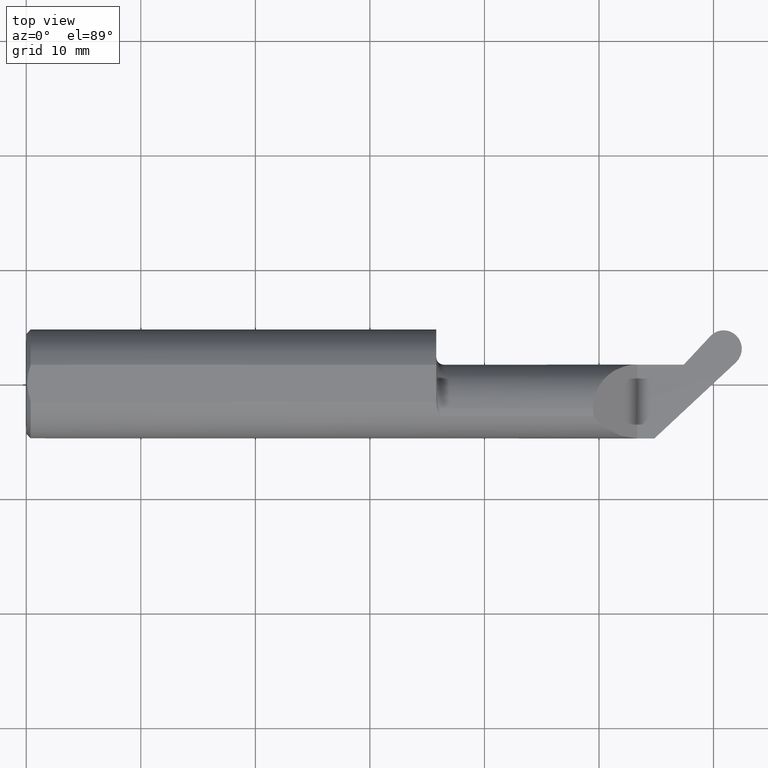
[diagram: clean part render]
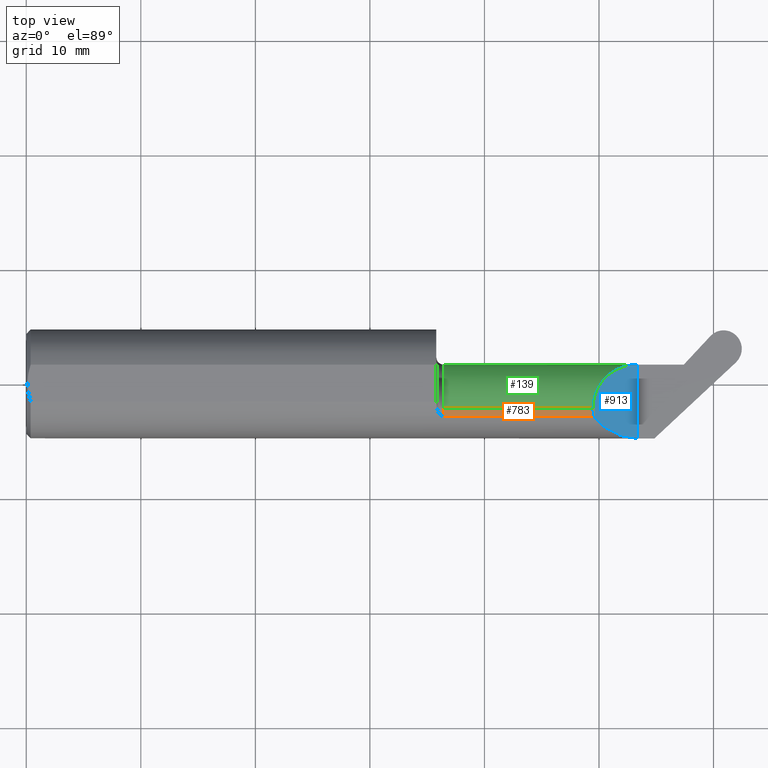
[diagram: same view with three faces highlighted in distinct colors, each labeled with its STEP entity id]
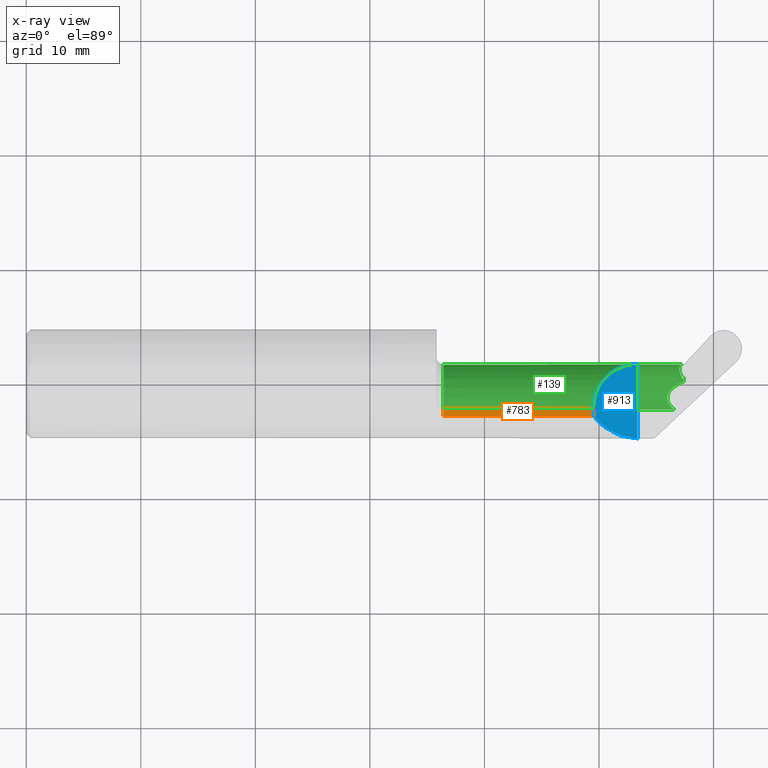
[diagram: x-ray of the same camera — body ghosted, the three highlighted faces saturated]
A machine part, top view with three faces highlighted in distinct colors.
The next image is the same camera in x-ray (body ghosted, the three faces saturated) — at least one of them is partly hidden behind the body in this view.
Their STEP definitions:

[orange] entity #783 — the highlighted cylindrical surface (partial cylindrical patch) has radius 3.8608 mm, axis along (-1, -0, -0).
#26 = CARTESIAN_POINT ( 'NONE',  ( 1.948844637866756990, -0.1038401262696871108, 0.1511553621332444586 ) ) ;
#68 = DIRECTION ( 'NONE',  ( 0.000000000000000000, 0.000000000000000000, 1.000000000000000000 ) ) ;
#74 = AXIS2_PLACEMENT_3D ( 'NONE', #771, #499, #80 ) ;
#80 = DIRECTION ( 'NONE',  ( 0.000000000000000000, 0.000000000000000000, 1.000000000000000000 ) ) ;
#106 = CARTESIAN_POINT ( 'NONE',  ( 1.950526878236143125, -0.1129504686584646977, 0.1494731217638582688 ) ) ;
#109 = EDGE_CURVE ( 'NONE', #732, #842, #422, .T. ) ;
#122 = EDGE_CURVE ( 'NONE', #732, #830, #200, .T. ) ;
#149 = CARTESIAN_POINT ( 'NONE',  ( 1.409400000000000652, -0.08534999999999998144, 0.1520000000000003570 ) ) ;
#164 = CYLINDRICAL_SURFACE ( 'NONE', #74, 0.1520000000000003570 ) ;
#178 = VERTEX_POINT ( 'NONE', #644 ) ;
#180 = CARTESIAN_POINT ( 'NONE',  ( 1.434400000000000341, -0.1129504686584644896, 0.1494731217638587406 ) ) ;
#200 = LINE ( 'NONE', #931, #735 ) ;
#211 = CARTESIAN_POINT ( 'NONE',  ( 1.950526878236143125, -0.1129504686584646977, 0.1494731217638582688 ) ) ;
#232 = VECTOR ( 'NONE', #740, 39.37007874015748143 ) ;
#268 =( BOUNDED_CURVE ( )  B_SPLINE_CURVE ( 3, ( #106, #26, #470, #398 ),
 .UNSPECIFIED., .F., .T. ) 
 B_SPLINE_CURVE_WITH_KNOTS ( ( 4, 4 ),
 ( 6.100590318874944629, 6.283185307179586232 ),
 .UNSPECIFIED. ) 
 CURVE ( )  GEOMETRIC_REPRESENTATION_ITEM ( )  RATIONAL_B_SPLINE_CURVE ( ( 1.000000000000000000, 0.9972235185427067439, 0.9972235185427067439, 1.000000000000000000 ) ) 
 REPRESENTATION_ITEM ( '' )  );
#269 = FACE_OUTER_BOUND ( 'NONE', #310, .T. ) ;
#301 = EDGE_CURVE ( 'NONE', #178, #842, #659, .T. ) ;
#310 = EDGE_LOOP ( 'NONE', ( #835, #912, #442, #767 ) ) ;
#356 = CARTESIAN_POINT ( 'NONE',  ( 1.434400000000000341, -0.08534999999999998144, 0.1520000000000007179 ) ) ;
#398 = CARTESIAN_POINT ( 'NONE',  ( 1.948000000000001286, -0.08534999999999998144, 0.1520000000000003570 ) ) ;
#400 = CARTESIAN_POINT ( 'NONE',  ( 1.434400000000000341, -0.08534999999999998144, 0.000000000000000000 ) ) ;
#422 = CIRCLE ( 'NONE', #578, 0.1520000000000007179 ) ;
#426 = DIRECTION ( 'NONE',  ( 1.000000000000000000, 0.000000000000000000, 0.000000000000000000 ) ) ;
#442 = ORIENTED_EDGE ( 'NONE', *, *, #109, .F. ) ;
#470 = CARTESIAN_POINT ( 'NONE',  ( 1.948000000000001286, -0.09461435486696996577, 0.1520000000000003570 ) ) ;
#497 = EDGE_CURVE ( 'NONE', #830, #178, #268, .T. ) ;
#499 = DIRECTION ( 'NONE',  ( -1.000000000000000000, -0.000000000000000000, -0.000000000000000000 ) ) ;
#578 = AXIS2_PLACEMENT_3D ( 'NONE', #400, #856, #68 ) ;
#644 = CARTESIAN_POINT ( 'NONE',  ( 1.948000000000001286, -0.08534999999999998144, 0.1520000000000003570 ) ) ;
#659 = LINE ( 'NONE', #149, #232 ) ;
#732 = VERTEX_POINT ( 'NONE', #180 ) ;
#735 = VECTOR ( 'NONE', #426, 39.37007874015748143 ) ;
#740 = DIRECTION ( 'NONE',  ( -1.000000000000000000, -0.000000000000000000, -0.000000000000000000 ) ) ;
#767 = ORIENTED_EDGE ( 'NONE', *, *, #122, .T. ) ;
#771 = CARTESIAN_POINT ( 'NONE',  ( 1.409400000000000652, -0.08534999999999998144, 0.000000000000000000 ) ) ;
#783 = ADVANCED_FACE ( 'NONE', ( #269 ), #164, .T. ) ;
#830 = VERTEX_POINT ( 'NONE', #211 ) ;
#835 = ORIENTED_EDGE ( 'NONE', *, *, #497, .T. ) ;
#842 = VERTEX_POINT ( 'NONE', #356 ) ;
#856 = DIRECTION ( 'NONE',  ( -1.000000000000000000, -0.000000000000000000, -0.000000000000000000 ) ) ;
#912 = ORIENTED_EDGE ( 'NONE', *, *, #301, .T. ) ;
#931 = CARTESIAN_POINT ( 'NONE',  ( 1.847270599853573003, -0.1129504686584644618, 0.1494731217638583798 ) ) ;

[blue] entity #913 — the highlighted planar face has unit normal (-0.7071, 0, -0.7071).
#18 = CARTESIAN_POINT ( 'NONE',  ( 2.100000000000000089, -0.1873500000000000165, -4.745349621061712245E-17 ) ) ;
#26 = CARTESIAN_POINT ( 'NONE',  ( 1.948844637866756990, -0.1038401262696871108, 0.1511553621332444586 ) ) ;
#40 = AXIS2_PLACEMENT_3D ( 'NONE', #18, #90, #162 ) ;
#90 = DIRECTION ( 'NONE',  ( -0.7071067811865510144, 0.000000000000000000, -0.7071067811865441310 ) ) ;
#106 = CARTESIAN_POINT ( 'NONE',  ( 1.950526878236143125, -0.1129504686584646977, 0.1494731217638582688 ) ) ;
#150 = CARTESIAN_POINT ( 'NONE',  ( 2.100000000000000089, 0.06665000000000036173, -4.745349621061712245E-17 ) ) ;
#153 = CARTESIAN_POINT ( 'NONE',  ( 2.100000000000000089, 0.06665000000000036173, -4.745349621061712245E-17 ) ) ;
#162 = DIRECTION ( 'NONE',  ( -0.7071067811865440200, 0.000000000000000000, 0.7071067811865509034 ) ) ;
#178 = VERTEX_POINT ( 'NONE', #644 ) ;
#199 = VECTOR ( 'NONE', #863, 39.37007874015748143 ) ;
#201 = CARTESIAN_POINT ( 'NONE',  ( 1.948000000000001286, -0.08534999999999998144, 0.1520000000000003570 ) ) ;
#211 = CARTESIAN_POINT ( 'NONE',  ( 1.950526878236143125, -0.1129504686584646977, 0.1494731217638582688 ) ) ;
#253 = CARTESIAN_POINT ( 'NONE',  ( 1.950526878236143125, -0.1129504686584646977, 0.1494731217638582688 ) ) ;
#256 = ORIENTED_EDGE ( 'NONE', *, *, #497, .F. ) ;
#268 =( BOUNDED_CURVE ( )  B_SPLINE_CURVE ( 3, ( #106, #26, #470, #398 ),
 .UNSPECIFIED., .F., .T. ) 
 B_SPLINE_CURVE_WITH_KNOTS ( ( 4, 4 ),
 ( 6.100590318874944629, 6.283185307179586232 ),
 .UNSPECIFIED. ) 
 CURVE ( )  GEOMETRIC_REPRESENTATION_ITEM ( )  RATIONAL_B_SPLINE_CURVE ( ( 1.000000000000000000, 0.9972235185427067439, 0.9972235185427067439, 1.000000000000000000 ) ) 
 REPRESENTATION_ITEM ( '' )  );
#359 = VERTEX_POINT ( 'NONE', #725 ) ;
#398 = CARTESIAN_POINT ( 'NONE',  ( 1.948000000000001286, -0.08534999999999998144, 0.1520000000000003570 ) ) ;
#409 = ORIENTED_EDGE ( 'NONE', *, *, #763, .F. ) ;
#428 = CARTESIAN_POINT ( 'NONE',  ( 1.948000000000001286, 0.003689538519289776997, 0.1520000000000003570 ) ) ;
#437 = FACE_OUTER_BOUND ( 'NONE', #548, .T. ) ;
#457 = ORIENTED_EDGE ( 'NONE', *, *, #596, .T. ) ;
#470 = CARTESIAN_POINT ( 'NONE',  ( 1.948000000000001286, -0.09461435486696996577, 0.1520000000000003570 ) ) ;
#485 = CARTESIAN_POINT ( 'NONE',  ( 2.100000000000000089, 0.2000000000000000111, -4.745349621061712245E-17 ) ) ;
#497 = EDGE_CURVE ( 'NONE', #830, #178, #268, .T. ) ;
#523 = PLANE ( 'NONE',  #40 ) ;
#546 = CARTESIAN_POINT ( 'NONE',  ( 2.040165707162854059, -0.1873499999999999888, 0.05983429283714654379 ) ) ;
#548 = EDGE_LOOP ( 'NONE', ( #256, #409, #457, #748 ) ) ;
#562 =( BOUNDED_CURVE ( )  B_SPLINE_CURVE ( 3, ( #201, #428, #782, #150 ),
 .UNSPECIFIED., .F., .T. ) 
 B_SPLINE_CURVE_WITH_KNOTS ( ( 4, 4 ),
 ( 0.000000000000000000, 1.570796326794896780 ),
 .UNSPECIFIED. ) 
 CURVE ( )  GEOMETRIC_REPRESENTATION_ITEM ( )  RATIONAL_B_SPLINE_CURVE ( ( 1.000000000000000000, 0.8047378541243649375, 0.8047378541243649375, 1.000000000000000000 ) ) 
 REPRESENTATION_ITEM ( '' )  );
#596 = EDGE_CURVE ( 'NONE', #359, #936, #916, .T. ) ;
#644 = CARTESIAN_POINT ( 'NONE',  ( 1.948000000000001286, -0.08534999999999998144, 0.1520000000000003570 ) ) ;
#687 = CARTESIAN_POINT ( 'NONE',  ( 1.986600064346650152, -0.1606879575236964119, 0.1133999356533509778 ) ) ;
#725 = CARTESIAN_POINT ( 'NONE',  ( 2.100000000000000089, -0.1873499999999999888, -4.745349621061712245E-17 ) ) ;
#748 = ORIENTED_EDGE ( 'NONE', *, *, #869, .F. ) ;
#763 = EDGE_CURVE ( 'NONE', #359, #830, #825, .T. ) ;
#782 = CARTESIAN_POINT ( 'NONE',  ( 2.010960461480711281, 0.06665000000000038949, 0.08903953851928975149 ) ) ;
#825 =( BOUNDED_CURVE ( )  B_SPLINE_CURVE ( 3, ( #915, #546, #687, #253 ),
 .UNSPECIFIED., .F., .F. ) 
 B_SPLINE_CURVE_WITH_KNOTS ( ( 4, 4 ),
 ( 4.712388980384689674, 5.636073291855367984 ),
 .UNSPECIFIED. ) 
 CURVE ( )  GEOMETRIC_REPRESENTATION_ITEM ( )  RATIONAL_B_SPLINE_CURVE ( ( 1.000000000000000000, 0.9301554373620515292, 0.9301554373620515292, 1.000000000000000000 ) ) 
 REPRESENTATION_ITEM ( '' )  );
#830 = VERTEX_POINT ( 'NONE', #211 ) ;
#863 = DIRECTION ( 'NONE',  ( -0.000000000000000000, 1.000000000000000000, -0.000000000000000000 ) ) ;
#869 = EDGE_CURVE ( 'NONE', #178, #936, #562, .T. ) ;
#913 = ADVANCED_FACE ( 'NONE', ( #437 ), #523, .F. ) ;
#915 = CARTESIAN_POINT ( 'NONE',  ( 2.100000000000000089, -0.1873499999999999888, -4.745349621061712245E-17 ) ) ;
#916 = LINE ( 'NONE', #485, #199 ) ;
#936 = VERTEX_POINT ( 'NONE', #153 ) ;

[green] entity #139 — the highlighted cylindrical surface (partial cylindrical patch) has radius 3.8608 mm, axis along (-1, -0, -0).
#1 = CARTESIAN_POINT ( 'NONE',  ( 2.226123638528743509, -0.08534999999999996756, -0.1520000000000003570 ) ) ;
#37 = EDGE_CURVE ( 'NONE', #842, #61, #468, .T. ) ;
#56 = VERTEX_POINT ( 'NONE', #686 ) ;
#61 = VERTEX_POINT ( 'NONE', #263 ) ;
#85 = ORIENTED_EDGE ( 'NONE', *, *, #274, .T. ) ;
#93 = CARTESIAN_POINT ( 'NONE',  ( 2.244516869901568068, 0.05645629897935580677, -0.05498308975101909302 ) ) ;
#103 = ORIENTED_EDGE ( 'NONE', *, *, #37, .F. ) ;
#112 = ORIENTED_EDGE ( 'NONE', *, *, #357, .T. ) ;
#115 = AXIS2_PLACEMENT_3D ( 'NONE', #195, #126, #570 ) ;
#126 = DIRECTION ( 'NONE',  ( -1.000000000000000000, -0.000000000000000000, -0.000000000000000000 ) ) ;
#139 = ADVANCED_FACE ( 'NONE', ( #414 ), #860, .T. ) ;
#149 = CARTESIAN_POINT ( 'NONE',  ( 1.409400000000000652, -0.08534999999999998144, 0.1520000000000003570 ) ) ;
#150 = CARTESIAN_POINT ( 'NONE',  ( 2.100000000000000089, 0.06665000000000036173, -4.745349621061712245E-17 ) ) ;
#153 = CARTESIAN_POINT ( 'NONE',  ( 2.100000000000000089, 0.06665000000000036173, -4.745349621061712245E-17 ) ) ;
#161 = CARTESIAN_POINT ( 'NONE',  ( 2.246626689335998517, 0.06138847945356164237, -0.03999301210648770200 ) ) ;
#165 = CARTESIAN_POINT ( 'NONE',  ( 2.251992488848001184, 0.02598289541876443870, -0.1039642947416264673 ) ) ;
#173 = CARTESIAN_POINT ( 'NONE',  ( 2.260141199707145887, 0.01092765083770513672, -0.1176206357284848569 ) ) ;
#177 = CARTESIAN_POINT ( 'NONE',  ( 1.409400000000000652, -0.08534999999999996756, -0.1520000000000003570 ) ) ;
#178 = VERTEX_POINT ( 'NONE', #644 ) ;
#188 = VERTEX_POINT ( 'NONE', #786 ) ;
#189 = EDGE_CURVE ( 'NONE', #56, #486, #891, .T. ) ;
#195 = CARTESIAN_POINT ( 'NONE',  ( 1.409400000000000652, -0.08534999999999998144, 0.000000000000000000 ) ) ;
#201 = CARTESIAN_POINT ( 'NONE',  ( 1.948000000000001286, -0.08534999999999998144, 0.1520000000000003570 ) ) ;
#202 = CIRCLE ( 'NONE', #640, 0.1519999999999999685 ) ;
#208 = CARTESIAN_POINT ( 'NONE',  ( 2.260141199707145887, 0.02599910668800015090, -0.1034667890668121010 ) ) ;
#210 = CARTESIAN_POINT ( 'NONE',  ( 2.197822866112266293, -0.01650722409923191525, -0.1400772845435100111 ) ) ;
#232 = VECTOR ( 'NONE', #740, 39.37007874015748143 ) ;
#257 = DIRECTION ( 'NONE',  ( -1.000000000000000000, -0.000000000000000000, -0.000000000000000000 ) ) ;
#263 = CARTESIAN_POINT ( 'NONE',  ( 1.434400000000000341, -0.08534999999999996756, -0.1520000000000007179 ) ) ;
#274 = EDGE_CURVE ( 'NONE', #628, #486, #202, .T. ) ;
#290 = DIRECTION ( 'NONE',  ( 1.000000000000000000, 0.000000000000000000, 0.000000000000000000 ) ) ;
#293 = VERTEX_POINT ( 'NONE', #800 ) ;
#297 = CARTESIAN_POINT ( 'NONE',  ( 2.244116630270731161, 0.05227606614710446353, -0.06473972895883868539 ) ) ;
#301 = EDGE_CURVE ( 'NONE', #178, #842, #659, .T. ) ;
#303 = CARTESIAN_POINT ( 'NONE',  ( 2.260141199707143667, 0.06665000000000145808, 7.717470582101543050E-15 ) ) ;
#341 = EDGE_CURVE ( 'NONE', #293, #188, #665, .T. ) ;
#356 = CARTESIAN_POINT ( 'NONE',  ( 1.434400000000000341, -0.08534999999999998144, 0.1520000000000007179 ) ) ;
#357 = EDGE_CURVE ( 'NONE', #936, #293, #376, .T. ) ;
#365 = DIRECTION ( 'NONE',  ( 0.000000000000000000, 0.000000000000000000, 1.000000000000000000 ) ) ;
#369 = CARTESIAN_POINT ( 'NONE',  ( 2.251845436493219221, 0.06572839334873586958, -0.01965257165044167337 ) ) ;
#372 = CARTESIAN_POINT ( 'NONE',  ( 2.244226989899055447, 0.04989058623087406358, -0.06958800794744127161 ) ) ;
#376 = LINE ( 'NONE', #672, #515 ) ;
#382 = DIRECTION ( 'NONE',  ( 0.000000000000000000, 0.000000000000000000, 1.000000000000000000 ) ) ;
#385 = ORIENTED_EDGE ( 'NONE', *, *, #189, .F. ) ;
#414 = FACE_OUTER_BOUND ( 'NONE', #569, .T. ) ;
#419 = CARTESIAN_POINT ( 'NONE',  ( 2.260141199707145887, -0.08534999999999998144, 0.000000000000000000 ) ) ;
#428 = CARTESIAN_POINT ( 'NONE',  ( 1.948000000000001286, 0.003689538519289776997, 0.1520000000000003570 ) ) ;
#431 = CARTESIAN_POINT ( 'NONE',  ( 2.247738491380130821, 0.06268864236261699474, -0.03486095946414904251 ) ) ;
#434 = DIRECTION ( 'NONE',  ( -1.000000000000000000, -0.000000000000000000, -0.000000000000000000 ) ) ;
#455 = EDGE_CURVE ( 'NONE', #188, #628, #724, .T. ) ;
#459 = CARTESIAN_POINT ( 'NONE',  ( 2.258878214475159130, 0.02365255206876458807, -0.1059921091525828085 ) ) ;
#468 = CIRCLE ( 'NONE', #545, 0.1520000000000007179 ) ;
#486 = VERTEX_POINT ( 'NONE', #173 ) ;
#515 = VECTOR ( 'NONE', #290, 39.37007874015748143 ) ;
#521 = EDGE_CURVE ( 'NONE', #56, #61, #766, .T. ) ;
#522 = CARTESIAN_POINT ( 'NONE',  ( 2.245070961208889937, 0.04467455014931961260, -0.07890578795393085598 ) ) ;
#545 = AXIS2_PLACEMENT_3D ( 'NONE', #894, #257, #382 ) ;
#549 = CARTESIAN_POINT ( 'NONE',  ( 2.186025623462557466, -0.04989617878413193930, -0.1520000000000003848 ) ) ;
#562 =( BOUNDED_CURVE ( )  B_SPLINE_CURVE ( 3, ( #201, #428, #782, #150 ),
 .UNSPECIFIED., .F., .T. ) 
 B_SPLINE_CURVE_WITH_KNOTS ( ( 4, 4 ),
 ( 0.000000000000000000, 1.570796326794896780 ),
 .UNSPECIFIED. ) 
 CURVE ( )  GEOMETRIC_REPRESENTATION_ITEM ( )  RATIONAL_B_SPLINE_CURVE ( ( 1.000000000000000000, 0.8047378541243649375, 0.8047378541243649375, 1.000000000000000000 ) ) 
 REPRESENTATION_ITEM ( '' )  );
#569 = EDGE_LOOP ( 'NONE', ( #385, #602, #103, #896, #846, #112, #815, #793, #85 ) ) ;
#570 = DIRECTION ( 'NONE',  ( 0.000000000000000000, 0.000000000000000000, 1.000000000000000000 ) ) ;
#584 = CARTESIAN_POINT ( 'NONE',  ( 2.256028074792660654, 0.01870869955986392136, -0.1107961508623369201 ) ) ;
#598 = DIRECTION ( 'NONE',  ( -1.000000000000000000, -0.000000000000000000, -0.000000000000000000 ) ) ;
#602 = ORIENTED_EDGE ( 'NONE', *, *, #521, .T. ) ;
#608 = CARTESIAN_POINT ( 'NONE',  ( 2.260141199707145887, 0.02599910668800015090, -0.1034667890668121010 ) ) ;
#628 = VERTEX_POINT ( 'NONE', #208 ) ;
#629 = CARTESIAN_POINT ( 'NONE',  ( 2.260141199707145887, 0.01092765083770513672, -0.1176206357284848569 ) ) ;
#640 = AXIS2_PLACEMENT_3D ( 'NONE', #419, #434, #365 ) ;
#644 = CARTESIAN_POINT ( 'NONE',  ( 1.948000000000001286, -0.08534999999999998144, 0.1520000000000003570 ) ) ;
#659 = LINE ( 'NONE', #149, #232 ) ;
#665 = B_SPLINE_CURVE_WITH_KNOTS ( 'NONE', 3,
 ( #303, #884, #369, #431, #161, #814, #93, #297, #372, #522, #819, #804, #165, #584 ),
 .UNSPECIFIED., .F., .F.,
 ( 4, 2, 2, 2, 2, 2, 4 ),
 ( 1.315271115337179334E-16, 0.0008101701905472222373, 0.001215255285820767816, 0.001620340381094313069, 0.002025425476367858323, 0.002430510571641402925, 0.003240680762188497335 ),
 .UNSPECIFIED. ) ;
#672 = CARTESIAN_POINT ( 'NONE',  ( 1.409400000000000652, 0.06665000000000036173, -4.745349621061712245E-17 ) ) ;
#684 = CARTESIAN_POINT ( 'NONE',  ( 2.257506643990768946, 0.02122147899316294967, -0.1084361721259405192 ) ) ;
#686 = CARTESIAN_POINT ( 'NONE',  ( 2.226123638528743509, -0.08534999999999996756, -0.1520000000000003570 ) ) ;
#724 =( BOUNDED_CURVE ( )  B_SPLINE_CURVE ( 3, ( #761, #684, #459, #608 ),
 .UNSPECIFIED., .F., .T. ) 
 B_SPLINE_CURVE_WITH_KNOTS ( ( 4, 4 ),
 ( 2.699207237110308188, 2.767232025981918753 ),
 .UNSPECIFIED. ) 
 CURVE ( )  GEOMETRIC_REPRESENTATION_ITEM ( )  RATIONAL_B_SPLINE_CURVE ( ( 1.000000000000000000, 0.9996144228480827731, 0.9996144228480827731, 1.000000000000000000 ) ) 
 REPRESENTATION_ITEM ( '' )  );
#740 = DIRECTION ( 'NONE',  ( -1.000000000000000000, -0.000000000000000000, -0.000000000000000000 ) ) ;
#761 = CARTESIAN_POINT ( 'NONE',  ( 2.256028074792660654, 0.01870869955986392136, -0.1107961508623369201 ) ) ;
#766 = LINE ( 'NONE', #177, #776 ) ;
#776 = VECTOR ( 'NONE', #598, 39.37007874015748143 ) ;
#782 = CARTESIAN_POINT ( 'NONE',  ( 2.010960461480711281, 0.06665000000000038949, 0.08903953851928975149 ) ) ;
#786 = CARTESIAN_POINT ( 'NONE',  ( 2.256028074792660654, 0.01870869955986392136, -0.1107961508623369201 ) ) ;
#793 = ORIENTED_EDGE ( 'NONE', *, *, #455, .T. ) ;
#800 = CARTESIAN_POINT ( 'NONE',  ( 2.260141199707143667, 0.06665000000000145808, 7.717470582101543050E-15 ) ) ;
#804 = CARTESIAN_POINT ( 'NONE',  ( 2.248816413346272913, 0.03282998080076793973, -0.09615879041668068394 ) ) ;
#814 = CARTESIAN_POINT ( 'NONE',  ( 2.245022470103787970, 0.05827565579094916987, -0.05003292284399134260 ) ) ;
#815 = ORIENTED_EDGE ( 'NONE', *, *, #341, .T. ) ;
#819 = CARTESIAN_POINT ( 'NONE',  ( 2.245796036934503359, 0.04185901539785760739, -0.08336139160681790838 ) ) ;
#842 = VERTEX_POINT ( 'NONE', #356 ) ;
#846 = ORIENTED_EDGE ( 'NONE', *, *, #869, .T. ) ;
#860 = CYLINDRICAL_SURFACE ( 'NONE', #115, 0.1520000000000003570 ) ;
#869 = EDGE_CURVE ( 'NONE', #178, #936, #562, .T. ) ;
#884 = CARTESIAN_POINT ( 'NONE',  ( 2.255582872112558590, 0.06665000000000048663, -0.009735860034139044716 ) ) ;
#891 =( BOUNDED_CURVE ( )  B_SPLINE_CURVE ( 3, ( #1, #549, #210, #629 ),
 .UNSPECIFIED., .F., .T. ) 
 B_SPLINE_CURVE_WITH_KNOTS ( ( 4, 4 ),
 ( 6.017531217444239466, 6.703477564922160958 ),
 .UNSPECIFIED. ) 
 CURVE ( )  GEOMETRIC_REPRESENTATION_ITEM ( )  RATIONAL_B_SPLINE_CURVE ( ( 1.000000000000000000, 0.9611726567094001084, 0.9611726567094001084, 1.000000000000000000 ) ) 
 REPRESENTATION_ITEM ( '' )  );
#894 = CARTESIAN_POINT ( 'NONE',  ( 1.434400000000000341, -0.08534999999999998144, 0.000000000000000000 ) ) ;
#896 = ORIENTED_EDGE ( 'NONE', *, *, #301, .F. ) ;
#936 = VERTEX_POINT ( 'NONE', #153 ) ;